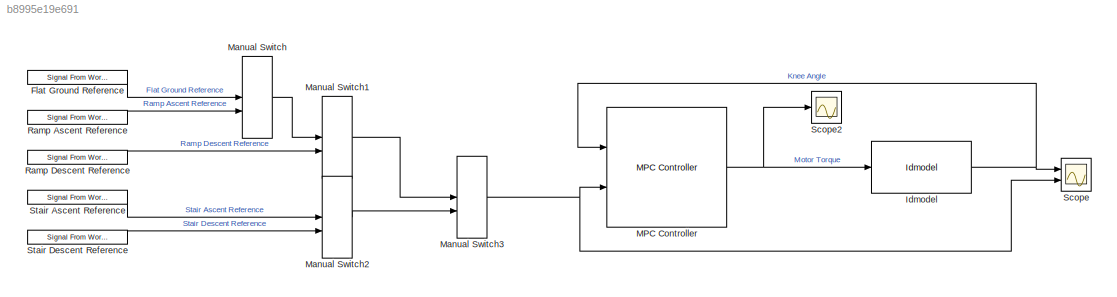
MODEL slx_b8995e19e691
KIND model
CONFIG AbsTol = auto
CONFIG EnableMultiTasking = off
CONFIG FixedStep = auto
CONFIG MaxStep = auto
CONFIG MinStep = auto
CONFIG RelTol = 1e-3
CONFIG SampleTimeConstraint = Unconstrained
CONFIG SolverName = VariableStepAuto
CONFIG StartTime = 0.0
CONFIG StopTime = 1.1
BLOCK [Reference] Flat Ground Reference  REF=dspsrcs4/Signal From
Workspace
  NameLocation = top
  Ports = [0, 1]
  SourceBlock = dspsrcs4/Signal From\nWorkspace
  SourceProductBaseCode = DS
  SourceType = Signal From Workspace
BLOCK [Reference] Idmodel  REF=slident/Models/Idmodel  (lib defined in mdl_f7d4911ca73a)
  Ports = [1, 1]
  SourceBlock = slident/Models/Idmodel
  SourceProductBaseCode = ID
  SourceType = Idmodel Block
BLOCK [Reference] MPC Controller  REF=mpclib/MPC Controller  (lib defined in mdl_ae329e0e0455)
  Ports = [2, 1]
  SCDEnableBlockLinearizationSpecification = on
  SourceBlock = mpclib/MPC Controller
  SourceProductBaseCode = MP
  SourceType = MPC
BLOCK [ManualSwitch] Manual Switch
  CurrentSetting = 0
BLOCK [ManualSwitch] Manual Switch1
  CurrentSetting = 0
BLOCK [ManualSwitch] Manual Switch2
  CurrentSetting = 0
BLOCK [ManualSwitch] Manual Switch3
  CurrentSetting = 0
BLOCK [Reference] Ramp Ascent Reference  REF=dspsrcs4/Signal From
Workspace
  NameLocation = top
  Ports = [0, 1]
  SourceBlock = dspsrcs4/Signal From\nWorkspace
  SourceProductBaseCode = DS
  SourceType = Signal From Workspace
BLOCK [Reference] Ramp Descent Reference  REF=dspsrcs4/Signal From
Workspace
  NameLocation = top
  Ports = [0, 1]
  SourceBlock = dspsrcs4/Signal From\nWorkspace
  SourceProductBaseCode = DS
  SourceType = Signal From Workspace
BLOCK [Scope] Scope
  Floating = off
  NumInputPorts = 2
  Ports = [2]
  ScopeSpecificationString = Simulink.scopes.TimeScopeBlockCfg('CurrentConfiguration', extmgr.ConfigurationSet(extmgr.Configuration('Core','General UI',true),extmgr.Configuration('Core','Source UI',true),extmgr.Configuration('Sources','WiredSimulink',true),extmgr.Configuration('Visuals','Time Domain',true,'SerializedDisplays',{struct('MinYLimReal','-10.46536','MaxYLimReal','73.62892','YLabelReal','','MinYLimMag','0.00000','Ma...<+1811ch>
BLOCK [Scope] Scope2
  Floating = off
  NumInputPorts = 1
  Ports = [1]
  ScopeSpecificationString = Simulink.scopes.TimeScopeBlockCfg('CurrentConfiguration', extmgr.ConfigurationSet(extmgr.Configuration('Core','General UI',true),extmgr.Configuration('Core','Source UI',true),extmgr.Configuration('Sources','WiredSimulink',true,'DataLoggingVariableName','ScopeData2'),extmgr.Configuration('Visuals','Time Domain',true,'SerializedDisplays',{struct('MinYLimReal','-0.46494','MaxYLimReal','0.97377','YLab...<+1470ch>
BLOCK [Reference] Stair Ascent Reference  REF=dspsrcs4/Signal From
Workspace
  NameLocation = top
  Ports = [0, 1]
  SourceBlock = dspsrcs4/Signal From\nWorkspace
  SourceProductBaseCode = DS
  SourceType = Signal From Workspace
BLOCK [Reference] Stair Descent Reference  REF=dspsrcs4/Signal From
Workspace
  NameLocation = top
  Ports = [0, 1]
  SourceBlock = dspsrcs4/Signal From\nWorkspace
  SourceProductBaseCode = DS
  SourceType = Signal From Workspace
LINE Flat Ground Reference:1 -> Manual Switch:1
NET Idmodel:1 -> MPC Controller:1, Scope:1
NET MPC Controller:1 -> Idmodel:1, Scope2:1
LINE Manual Switch1:1 -> Manual Switch3:1
LINE Manual Switch2:1 -> Manual Switch3:2
NET Manual Switch3:1 -> MPC Controller:2, Scope:2
LINE Manual Switch:1 -> Manual Switch1:1
LINE Ramp Ascent Reference:1 -> Manual Switch:2
LINE Ramp Descent Reference:1 -> Manual Switch1:2
LINE Stair Ascent Reference:1 -> Manual Switch2:1
LINE Stair Descent Reference:1 -> Manual Switch2:2
note: NET lines group one-source signal fan-out (src -> all destinations, sorted); 1:1 wires keep LINE
